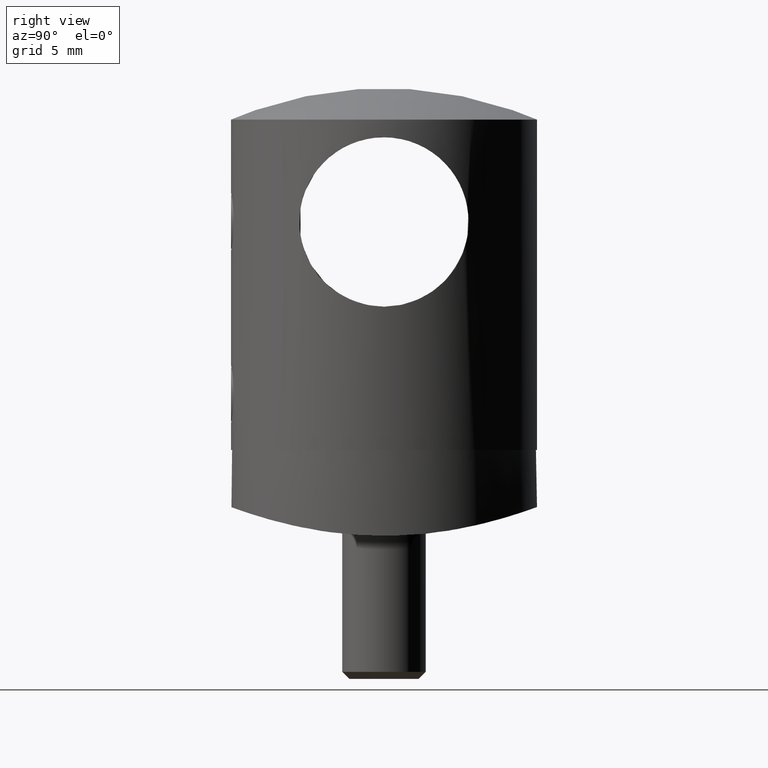
[diagram: clean part render]
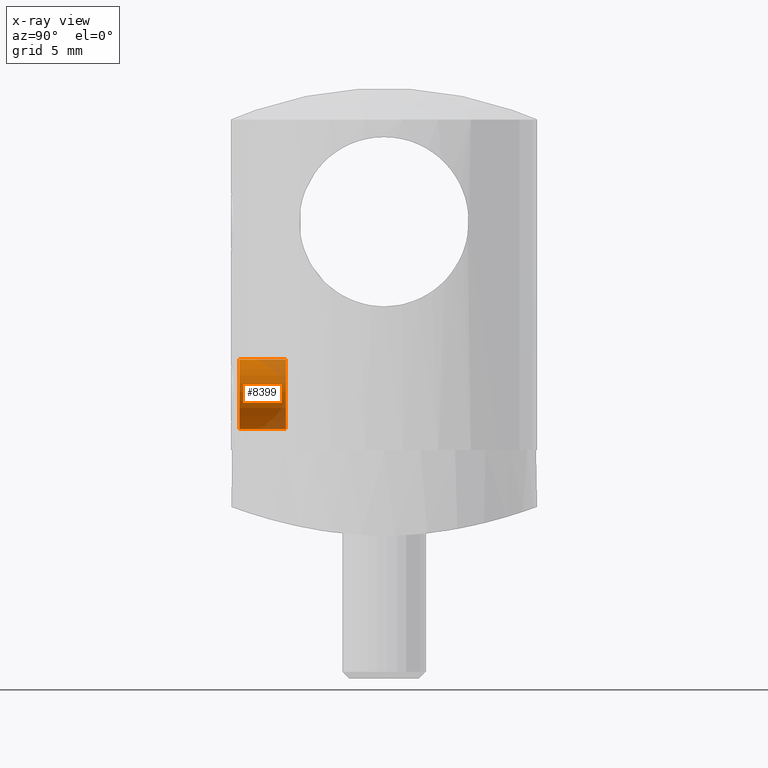
[diagram: x-ray — body ghosted, one internal face saturated and labeled with its STEP entity id]
A machine part, right view, then the same camera in x-ray: the body is ghosted and one INTERNAL B-rep face — a face not visible from any outside direction — is saturated and labeled: STEP entity #8399.
In plain terms, the highlighted cylindrical surface (bore or boss wall) has radius 2.5 mm, axis along (0, 1, 0).
Its self-contained STEP definition (entity closure, byte-faithful):
#225 = AXIS2_PLACEMENT_3D ( 'NONE', #3576, #20768, #9061 ) ;
#351 = EDGE_CURVE ( 'NONE', #5758, #5758, #13222, .T. ) ;
#1229 = AXIS2_PLACEMENT_3D ( 'NONE', #13144, #12916, #8215 ) ;
#1364 = CARTESIAN_POINT ( 'NONE',  ( 5.399999999999998579, 0.000000000000000000, -2.500000000000000000 ) ) ;
#3576 = CARTESIAN_POINT ( 'NONE',  ( 2.049999999999975397, 0.000000000000000000, 0.000000000000000000 ) ) ;
#4361 = CARTESIAN_POINT ( 'NONE',  ( 5.999999999999998224, 0.000000000000000000, 0.000000000000000000 ) ) ;
#4483 = CIRCLE ( 'NONE', #1229, 2.500000000000000000 ) ;
#4941 = EDGE_LOOP ( 'NONE', ( #5667 ) ) ;
#5380 = ORIENTED_EDGE ( 'NONE', *, *, #351, .F. ) ;
#5667 = ORIENTED_EDGE ( 'NONE', *, *, #8472, .T. ) ;
#5758 = VERTEX_POINT ( 'NONE', #12787 ) ;
#7269 = AXIS2_PLACEMENT_3D ( 'NONE', #4361, #19255, #17518 ) ;
#7677 = EDGE_LOOP ( 'NONE', ( #5380 ) ) ;
#8215 = DIRECTION ( 'NONE',  ( 0.000000000000000000, 0.000000000000000000, -1.000000000000000000 ) ) ;
#8399 = ADVANCED_FACE ( 'NONE', ( #13081, #8663 ), #19575, .T. ) ;
#8472 = EDGE_CURVE ( 'NONE', #9002, #9002, #4483, .T. ) ;
#8663 = FACE_OUTER_BOUND ( 'NONE', #7677, .T. ) ;
#9002 = VERTEX_POINT ( 'NONE', #1364 ) ;
#9061 = DIRECTION ( 'NONE',  ( 0.000000000000000000, 0.000000000000000000, 1.000000000000000000 ) ) ;
#12787 = CARTESIAN_POINT ( 'NONE',  ( 2.049999999999975397, 0.000000000000000000, 2.499999999999999556 ) ) ;
#12916 = DIRECTION ( 'NONE',  ( -1.000000000000000000, -0.000000000000000000, -0.000000000000000000 ) ) ;
#13081 = FACE_OUTER_BOUND ( 'NONE', #4941, .T. ) ;
#13144 = CARTESIAN_POINT ( 'NONE',  ( 5.399999999999998579, 0.000000000000000000, 0.000000000000000000 ) ) ;
#13222 = CIRCLE ( 'NONE', #225, 2.499999999999999556 ) ;
#17518 = DIRECTION ( 'NONE',  ( 0.000000000000000000, 0.000000000000000000, 1.000000000000000000 ) ) ;
#19255 = DIRECTION ( 'NONE',  ( -1.000000000000000000, 0.000000000000000000, 0.000000000000000000 ) ) ;
#19575 = CYLINDRICAL_SURFACE ( 'NONE', #7269, 2.500000000000000000 ) ;
#20768 = DIRECTION ( 'NONE',  ( -1.000000000000000000, 0.000000000000000000, 0.000000000000000000 ) ) ;